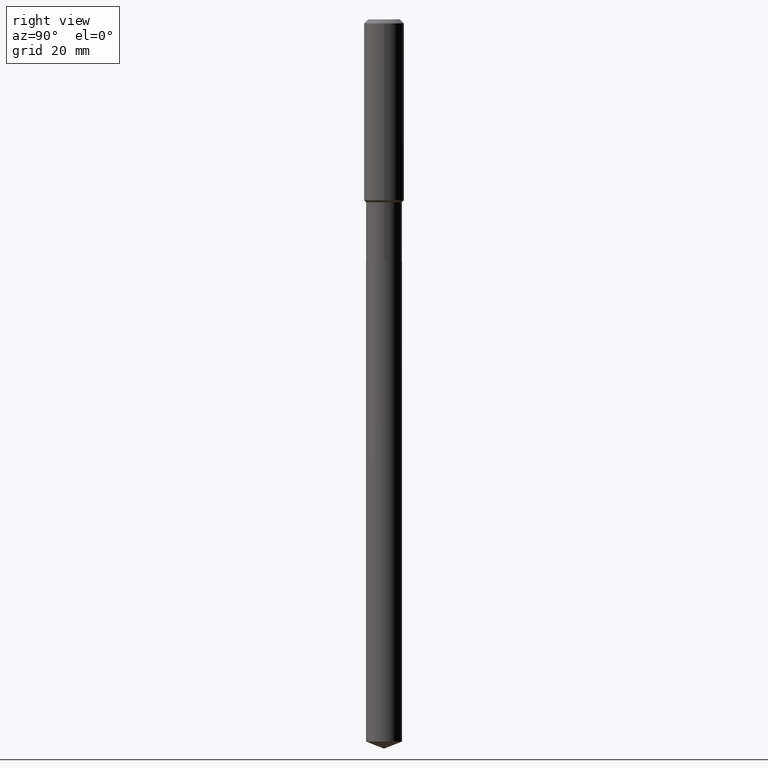
[diagram: clean part render]
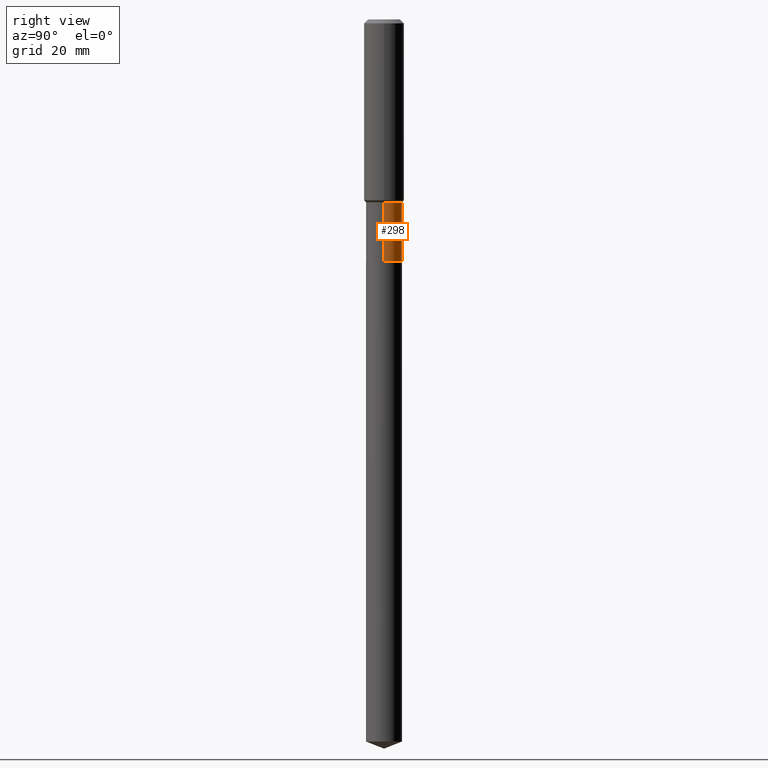
[diagram: same view with one face highlighted and labeled with its STEP entity id]
A machine part, right view. The second image highlights one B-rep face of the part: STEP entity #298.
In plain terms, the highlighted cylindrical surface (edge-blend (fillet) strip) has radius 4.4996 mm, axis along (-0, 0, 1).
Its self-contained STEP definition (entity closure, byte-faithful):
#15 = CARTESIAN_POINT ( 'NONE',  ( 0.1771500000000000574, -9.549899758003767043E-15, -2.380900000000000016 ) ) ;
#17 = EDGE_LOOP ( 'NONE', ( #406, #459, #473, #193 ) ) ;
#24 = CYLINDRICAL_SURFACE ( 'NONE', #42, 0.1771499999999999742 ) ;
#42 = AXIS2_PLACEMENT_3D ( 'NONE', #101, #125, #64 ) ;
#64 = DIRECTION ( 'NONE',  ( 1.000000000000000000, -6.982962677686266711E-15, 4.876176775795935793E-29 ) ) ;
#75 = EDGE_CURVE ( 'NONE', #281, #99, #412, .T. ) ;
#84 = VECTOR ( 'NONE', #200, 39.37007874015748143 ) ;
#89 = DIRECTION ( 'NONE',  ( -2.445468806185136877E-29, 3.491481338843145188E-15, 1.000000000000000000 ) ) ;
#99 = VERTEX_POINT ( 'NONE', #460 ) ;
#101 = CARTESIAN_POINT ( 'NONE',  ( 0.000000000000000000, 0.000000000000000000, 0.000000000000000000 ) ) ;
#109 = FACE_OUTER_BOUND ( 'NONE', #17, .T. ) ;
#125 = DIRECTION ( 'NONE',  ( -2.445468806185136597E-29, 3.491481338843145583E-15, 1.000000000000000000 ) ) ;
#143 = AXIS2_PLACEMENT_3D ( 'NONE', #191, #338, #268 ) ;
#148 = CARTESIAN_POINT ( 'NONE',  ( 0.1771499999999999464, -7.510874656119368833E-15, -1.796899999999999720 ) ) ;
#184 = EDGE_CURVE ( 'NONE', #421, #99, #274, .T. ) ;
#191 = CARTESIAN_POINT ( 'NONE',  ( 4.394262897834071178E-29, -6.273842817767247228E-15, -1.796899999999999720 ) ) ;
#193 = ORIENTED_EDGE ( 'NONE', *, *, #231, .F. ) ;
#197 = CARTESIAN_POINT ( 'NONE',  ( 0.1771499999999999742, -1.237031838352121999E-15, 8.638147158322498559E-30 ) ) ;
#200 = DIRECTION ( 'NONE',  ( -2.445468806185136877E-29, 3.491481338843145188E-15, 1.000000000000000000 ) ) ;
#206 = CARTESIAN_POINT ( 'NONE',  ( -0.1771500000000000574, -6.034628912310427854E-15, -2.380900000000000016 ) ) ;
#229 = LINE ( 'NONE', #197, #452 ) ;
#231 = EDGE_CURVE ( 'NONE', #245, #281, #229, .T. ) ;
#245 = VERTEX_POINT ( 'NONE', #15 ) ;
#268 = DIRECTION ( 'NONE',  ( 1.000000000000000000, -6.982962677686263555E-15, 0.000000000000000000 ) ) ;
#271 = CIRCLE ( 'NONE', #378, 0.1771500000000000574 ) ;
#274 = LINE ( 'NONE', #461, #84 ) ;
#281 = VERTEX_POINT ( 'NONE', #148 ) ;
#298 = ADVANCED_FACE ( 'NONE', ( #109 ), #24, .T. ) ;
#314 = CARTESIAN_POINT ( 'NONE',  ( 5.822416680646192008E-29, -8.312867919651646226E-15, -2.380900000000000016 ) ) ;
#338 = DIRECTION ( 'NONE',  ( -2.445468806185136597E-29, 3.491481338843145583E-15, 1.000000000000000000 ) ) ;
#355 = DIRECTION ( 'NONE',  ( -2.445468806185136597E-29, 3.491481338843145583E-15, 1.000000000000000000 ) ) ;
#357 = DIRECTION ( 'NONE',  ( 1.000000000000000000, -6.982962677686264344E-15, 0.000000000000000000 ) ) ;
#371 = EDGE_CURVE ( 'NONE', #245, #421, #271, .T. ) ;
#378 = AXIS2_PLACEMENT_3D ( 'NONE', #314, #355, #357 ) ;
#406 = ORIENTED_EDGE ( 'NONE', *, *, #371, .T. ) ;
#412 = CIRCLE ( 'NONE', #143, 0.1771499999999999464 ) ;
#421 = VERTEX_POINT ( 'NONE', #206 ) ;
#452 = VECTOR ( 'NONE', #89, 39.37007874015748143 ) ;
#459 = ORIENTED_EDGE ( 'NONE', *, *, #184, .T. ) ;
#460 = CARTESIAN_POINT ( 'NONE',  ( -0.1771499999999999464, -6.034628912310428643E-15, -1.796899999999999720 ) ) ;
#461 = CARTESIAN_POINT ( 'NONE',  ( -0.1771499999999999742, 1.258726456399017296E-15, -8.713893512386563924E-30 ) ) ;
#473 = ORIENTED_EDGE ( 'NONE', *, *, #75, .F. ) ;